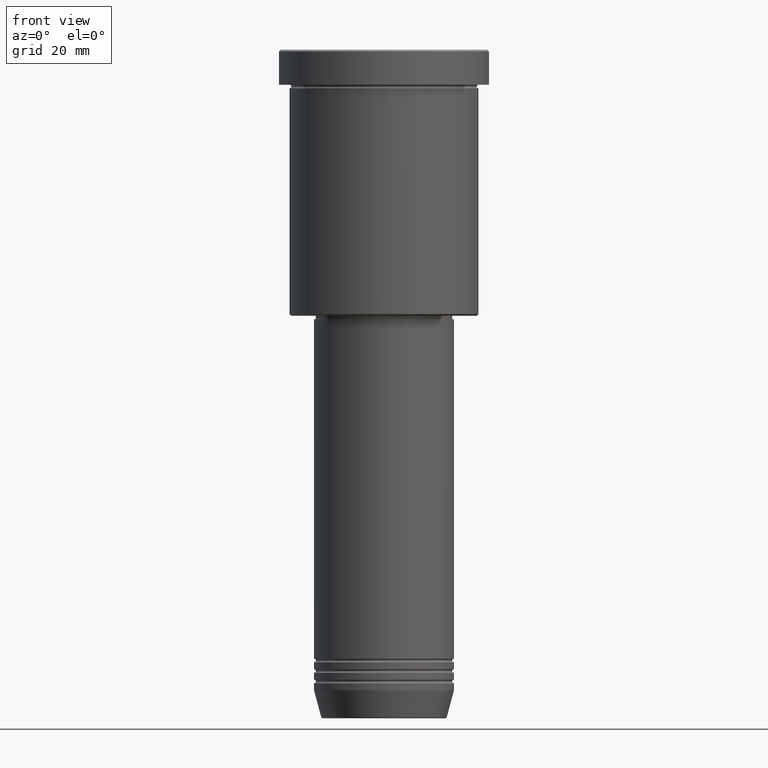
[diagram: clean part render]
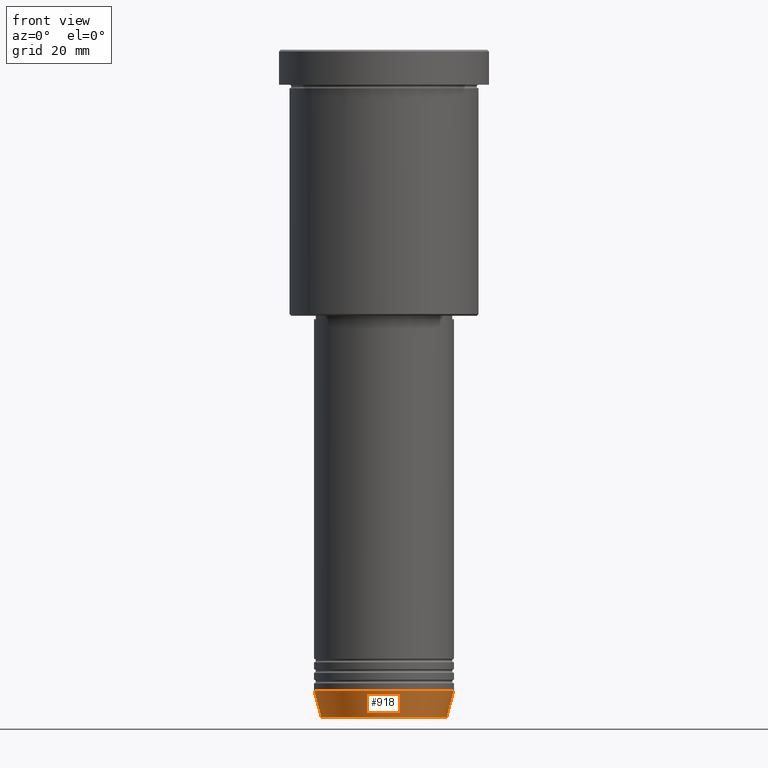
[diagram: same view with one face highlighted and labeled with its STEP entity id]
A machine part, front view. The second image highlights one B-rep face of the part: STEP entity #918.
In plain terms, the highlighted conical surface has half-angle 15 deg.
Its self-contained STEP definition (entity closure, byte-faithful):
#20 = DIRECTION ( 'NONE',  ( 1.000000000000000000, 0.000000000000000000, 0.000000000000000000 ) ) ;
#39 = EDGE_CURVE ( 'NONE', #488, #868, #526, .T. ) ;
#45 = EDGE_CURVE ( 'NONE', #619, #546, #967, .T. ) ;
#64 = ORIENTED_EDGE ( 'NONE', *, *, #1112, .F. ) ;
#71 = DIRECTION ( 'NONE',  ( -0.000000000000000000, -0.000000000000000000, 1.000000000000000000 ) ) ;
#76 = CARTESIAN_POINT ( 'NONE',  ( 17.95570587970607690, 0.000000000000000000, -190.6294095225512706 ) ) ;
#121 = CARTESIAN_POINT ( 'NONE',  ( 20.00000000000000000, 0.000000000000000000, -183.0000000000000284 ) ) ;
#140 = ORIENTED_EDGE ( 'NONE', *, *, #39, .T. ) ;
#272 = CARTESIAN_POINT ( 'NONE',  ( -17.95570587970607690, 2.324116685748020977E-15, -190.6294095225512706 ) ) ;
#276 = VECTOR ( 'NONE', #474, 1000.000000000000000 ) ;
#291 = LINE ( 'NONE', #121, #276 ) ;
#294 = CARTESIAN_POINT ( 'NONE',  ( 0.000000000000000000, 0.000000000000000000, -183.0000000000000284 ) ) ;
#305 = CARTESIAN_POINT ( 'NONE',  ( -20.00000000000000000, 2.449293598294706513E-15, -183.0000000000000284 ) ) ;
#323 = EDGE_CURVE ( 'NONE', #868, #546, #291, .T. ) ;
#404 = AXIS2_PLACEMENT_3D ( 'NONE', #294, #841, #822 ) ;
#410 = VECTOR ( 'NONE', #661, 1000.000000000000000 ) ;
#428 = EDGE_LOOP ( 'NONE', ( #64, #140, #691, #1101 ) ) ;
#431 = CARTESIAN_POINT ( 'NONE',  ( 0.000000000000000000, 0.000000000000000000, -183.0000000000000284 ) ) ;
#474 = DIRECTION ( 'NONE',  ( 0.2588190451025213501, 0.000000000000000000, 0.9659258262890680902 ) ) ;
#479 = CONICAL_SURFACE ( 'NONE', #651, 20.00000000000000000, 0.2617993877991500740 ) ;
#488 = VERTEX_POINT ( 'NONE', #272 ) ;
#526 = CIRCLE ( 'NONE', #621, 17.95570587970607690 ) ;
#546 = VERTEX_POINT ( 'NONE', #901 ) ;
#619 = VERTEX_POINT ( 'NONE', #737 ) ;
#621 = AXIS2_PLACEMENT_3D ( 'NONE', #938, #834, #20 ) ;
#627 = DIRECTION ( 'NONE',  ( 1.000000000000000000, 0.000000000000000000, 0.000000000000000000 ) ) ;
#651 = AXIS2_PLACEMENT_3D ( 'NONE', #431, #71, #627 ) ;
#661 = DIRECTION ( 'NONE',  ( -0.2588190451025213501, 3.169619151431772337E-17, 0.9659258262890680902 ) ) ;
#691 = ORIENTED_EDGE ( 'NONE', *, *, #323, .T. ) ;
#737 = CARTESIAN_POINT ( 'NONE',  ( -20.00000000000000000, 2.449293598294706513E-15, -183.0000000000000284 ) ) ;
#815 = FACE_OUTER_BOUND ( 'NONE', #428, .T. ) ;
#822 = DIRECTION ( 'NONE',  ( 1.000000000000000000, 0.000000000000000000, 0.000000000000000000 ) ) ;
#834 = DIRECTION ( 'NONE',  ( -0.000000000000000000, -0.000000000000000000, 1.000000000000000000 ) ) ;
#841 = DIRECTION ( 'NONE',  ( -0.000000000000000000, -0.000000000000000000, 1.000000000000000000 ) ) ;
#868 = VERTEX_POINT ( 'NONE', #76 ) ;
#901 = CARTESIAN_POINT ( 'NONE',  ( 20.00000000000000000, 0.000000000000000000, -183.0000000000000284 ) ) ;
#918 = ADVANCED_FACE ( 'NONE', ( #815 ), #479, .T. ) ;
#938 = CARTESIAN_POINT ( 'NONE',  ( 0.000000000000000000, 0.000000000000000000, -190.6294095225512706 ) ) ;
#967 = CIRCLE ( 'NONE', #404, 20.00000000000000000 ) ;
#1101 = ORIENTED_EDGE ( 'NONE', *, *, #45, .F. ) ;
#1112 = EDGE_CURVE ( 'NONE', #488, #619, #1133, .T. ) ;
#1133 = LINE ( 'NONE', #305, #410 ) ;